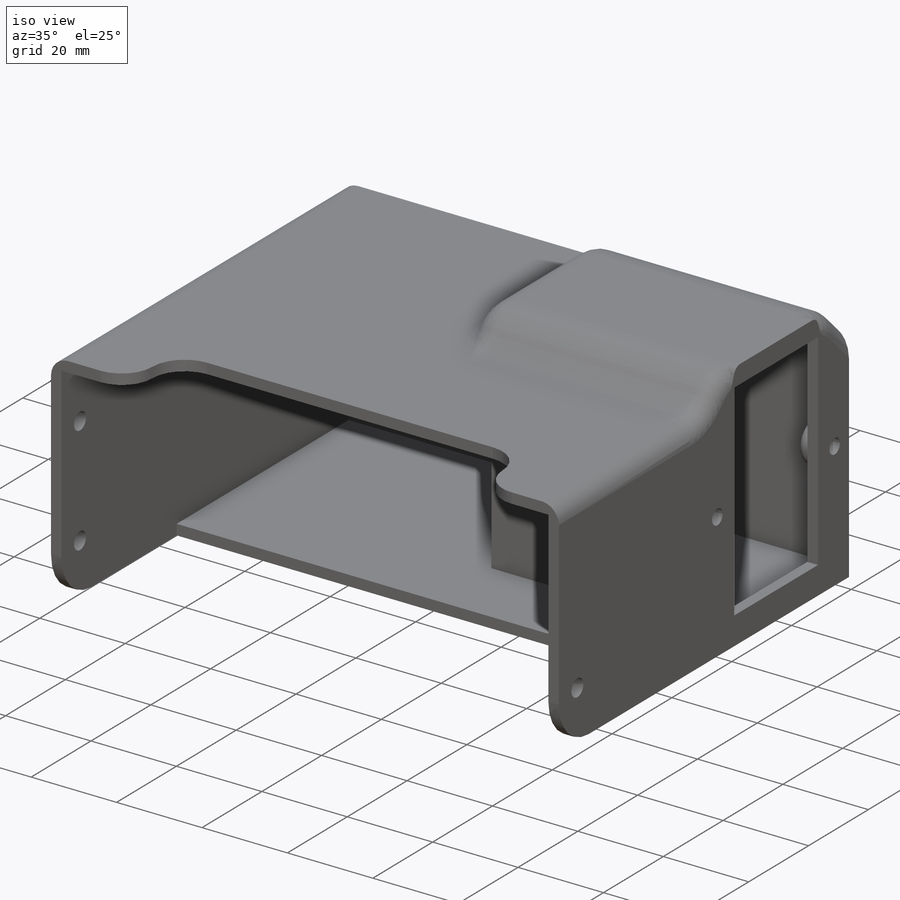
[diagram: iso view]
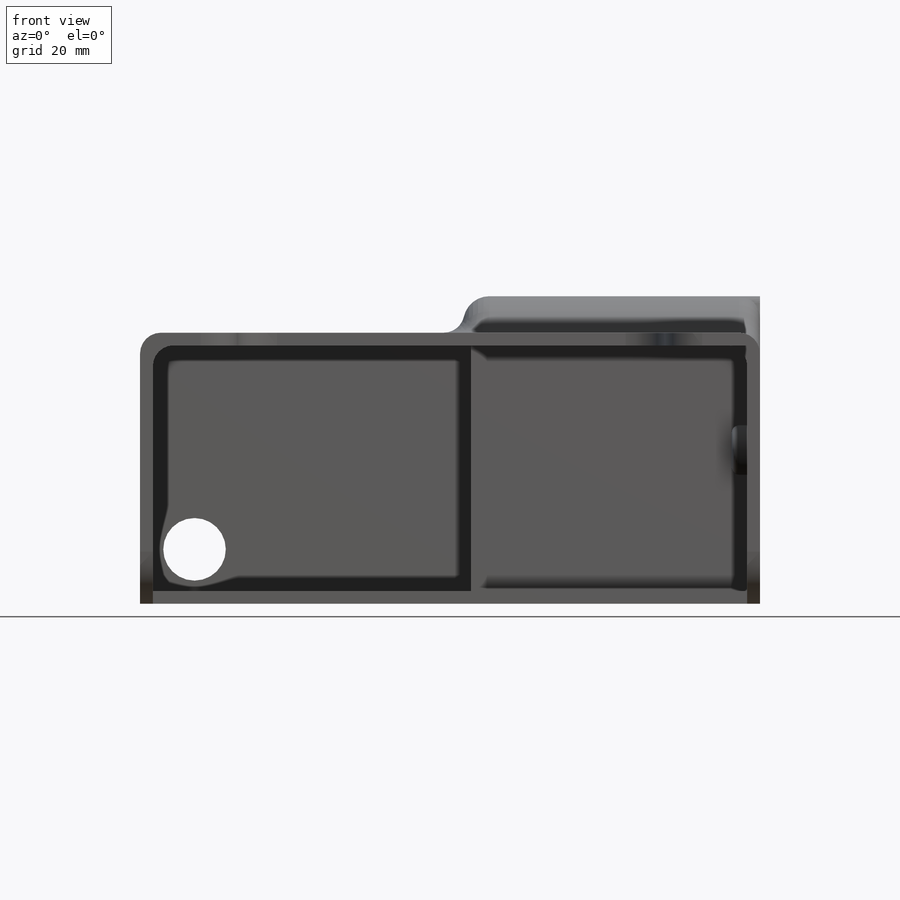
[diagram: front view]
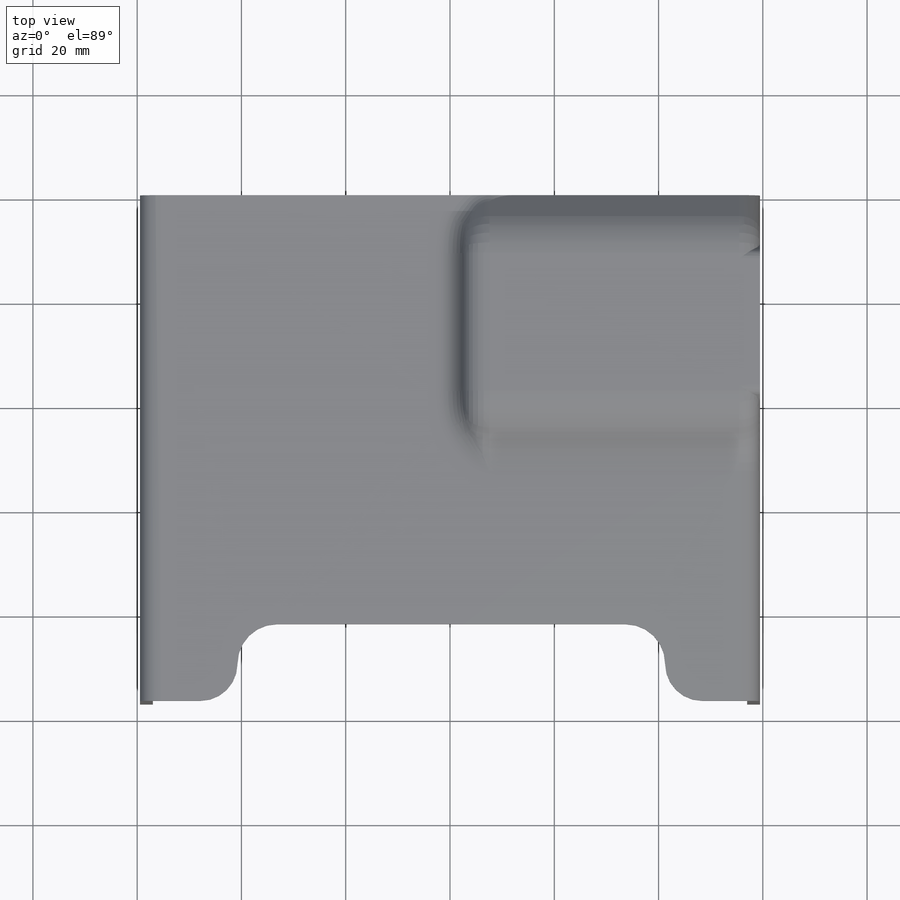
[diagram: top view]
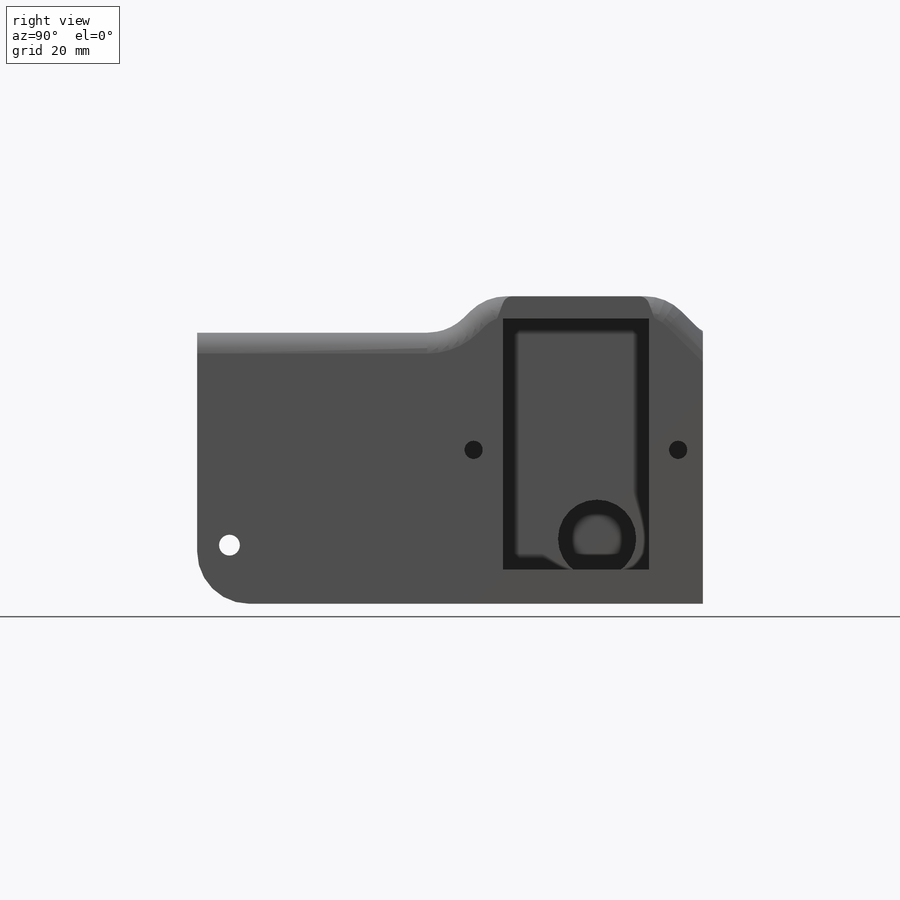
[diagram: right view]
SOLIDWORKS PART (.sldprt)
format: sldprt  version: not decoded by parser v0  size: 1,098,240 bytes
history: native  units: mm
features: sketch x29, cut_extrude x15, extrude x12, fillet x7, material x1, plane x1 (+11 scaffold rows collapsed)
feature tree (76):
  scaffold x11  (default folders/planes/origin — collapsed)
  material  "Material <not specified>"
  sketch  "Sketch1"  dims[D1=52.0mm]
  extrude  "Boss-Extrude1"  Depth=90mm
  sketch  "Sketch2"  dims[D1=2.45mm]
  cut_extrude  "Cut-Extrude1"  Depth=1mm
  sketch  "Sketch3"  dims[D1=0.0mm]
  cut_extrude  "Cut-Extrude2"  [1 undecoded]
  sketch  "Sketch4"
  cut_extrude  "Cut-Extrude3"  Depth=31.5mm
  sketch  "Sketch5"  dims[D1=0.0mm D2=0.0mm]
  sketch  "Sketch6"  dims[c1.D5=~14.961159mm c2.D5=45.0deg c2.D6=15.0mm c2.D1=0.0mm c2.D2=0.0mm c2.D3=0.0mm c2.D4=0.0mm]
  sketch  "Sketch7"  dims[D1=0.5mm]
  cut_extrude  "Cut-Extrude4"  [1 undecoded]
  sketch  "Sketch8"  dims[D1=2.45mm D2=2.45mm]
  extrude  "Boss-Extrude2"  [1 undecoded]
  sketch  "Sketch9"
  cut_extrude  "Cut-Extrude6"  [1 undecoded]
  sketch  "Sketch10"  dims[D1=0.5mm]
  extrude  "Boss-Extrude3"  [1 undecoded]
  sketch  "Sketch11"
  extrude  "Boss-Extrude4"  [1 undecoded]
  fillet  "Fillet1"  Radius=10mm
  plane  "Plane1"  Offset=52mm
  sketch  "Sketch12"  dims[D1=0.0mm]
  extrude  "Boss-Extrude5"  Depth=1mm
  sketch  "Sketch13"  dims[D1=1.0mm D2=1.5mm]
  extrude  "Boss-Extrude6"  [1 undecoded]
  sketch  "Sketch14"  dims[D1=0.0mm]
  cut_extrude  "Cut-Extrude7"  Depth=2.45mm
  sketch  "Sketch15"  dims[D1=0.5mm D2=1.0mm D3=0.5mm D4=35.0]
  cut_extrude  "Cut-Extrude8"  Depth=0.5mm
  sketch  "Sketch16"  dims[D1=1.45mm]
  cut_extrude  "Cut-Extrude9"  [1 undecoded]
  sketch  "Sketch17"  dims[D1=2.45mm]
  extrude  "Boss-Extrude7"  [1 undecoded]
  sketch  "Sketch18"  dims[D1=0.0mm]
  extrude  "Boss-Extrude8"  [1 undecoded]
  sketch  "Sketch19"  dims[D1=0.0mm]
  extrude  "Boss-Extrude9"  [1 undecoded]
  fillet  "Fillet5"  Radius=5mm
  fillet  "Fillet6"  Radius=4mm
  sketch  "Sketch20"  dims[D1=0.0mm]
  extrude  "Boss-Extrude10"  Depth=7mm
  sketch  "Sketch21"
  cut_extrude  "Cut-Extrude10"  [1 undecoded]
  fillet  "Fillet7"  Radius=4mm
  fillet  "Fillet8"  Radius=2mm
  sketch  "Sketch22"
  cut_extrude  "Cut-Extrude11"  Depth=7mm
  sketch  "Sketch23"  dims[D1=3.0mm D2=3.0mm]
  extrude  "Boss-Extrude11"  Depth=3mm
  fillet  "Fillet9"  Radius=1.5mm
  sketch  "Sketch24"
  sketch  "Sketch25"
  sketch  "Sketch26"  dims[D1=6.0mm]
  sketch  "Sketch27"  dims[D1=10.0mm]
  cut_extrude  "Cut-Extrude12"  Depth=3mm
  sketch  "Sketch28"  dims[c1.D1=12.0mm c1.D2=12.0mm c2.D1=8.0mm c2.D2=8.0mm]
  cut_extrude  "Cut-Extrude13"  Depth=3mm
  cut_extrude  "Cut-Extrude14"  Depth=3mm
  cut_extrude  "Cut-Extrude15"  Depth=3mm
  fillet  "Fillet11"  Radius=10mm
  sketch  "Sketch29"  dims[D1=0.0mm]
  extrude  "Boss-Extrude12"  Depth=3mm
  cut_extrude  "Cut-Extrude16"  Depth=3mm
decode coverage: 44 of 63 modeling features carry decoded parameters
note: ~ marks probable driven/reference dimensions
note: 12 parameter values undecoded
summary: no parameter record found for 12 features
note: suppression state not decoded; provenance and decode notes live in map.json
